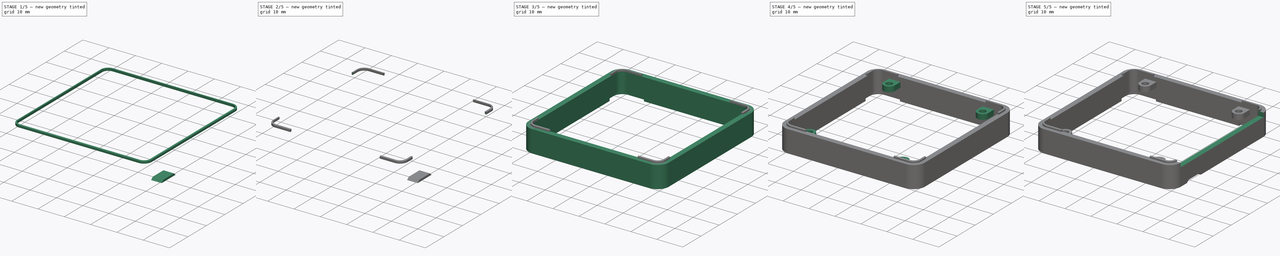
[diagram: build sequence overview — one tinted view per stage of 5, left to right]
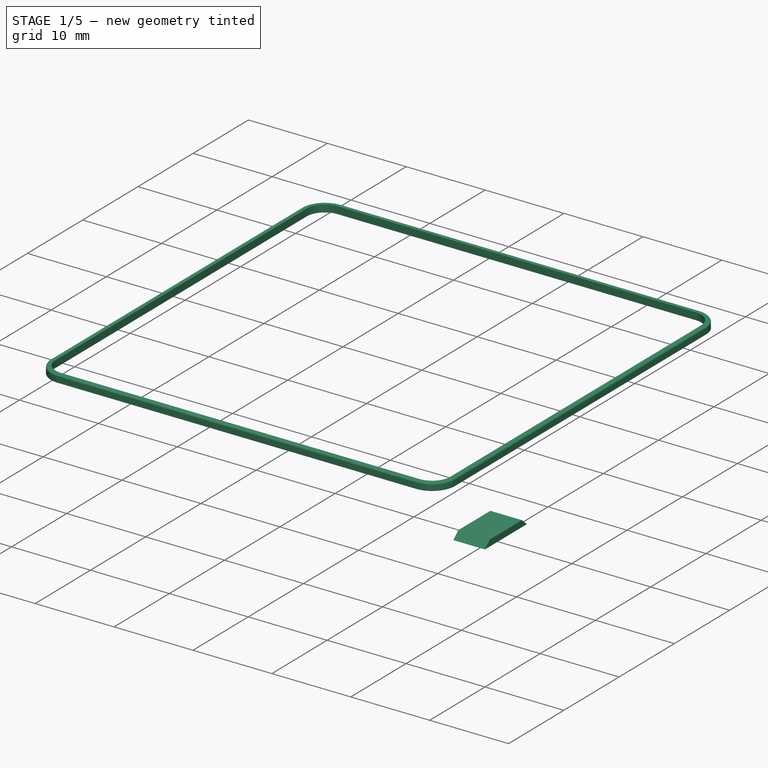
[diagram: stage 1 of 5 — iso view after this stage's code; geometry added in this stage tinted green]
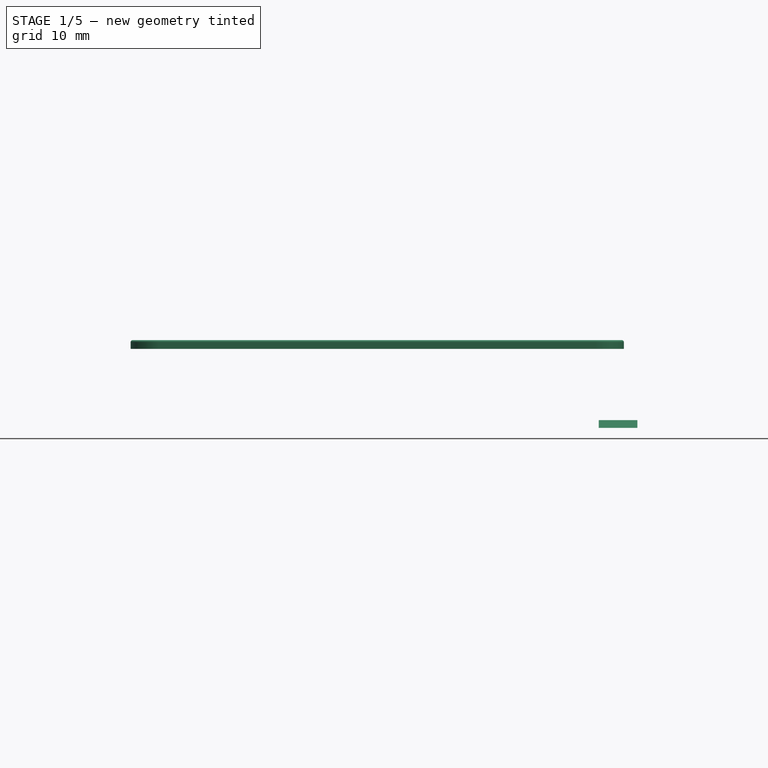
[diagram: stage 1 of 5 — front view after this stage's code; geometry added in this stage tinted green]
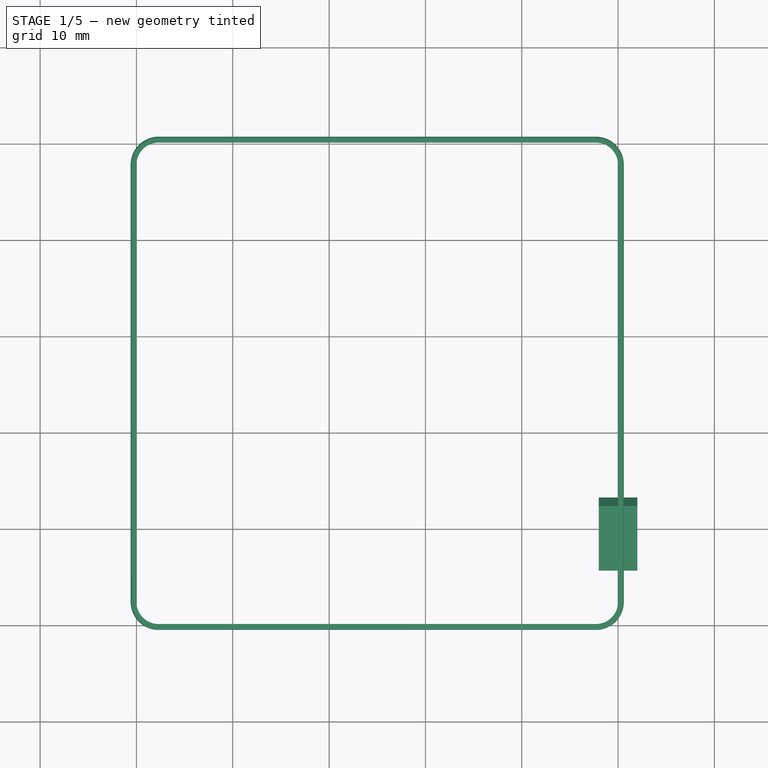
[diagram: stage 1 of 5 — top view after this stage's code; geometry added in this stage tinted green]
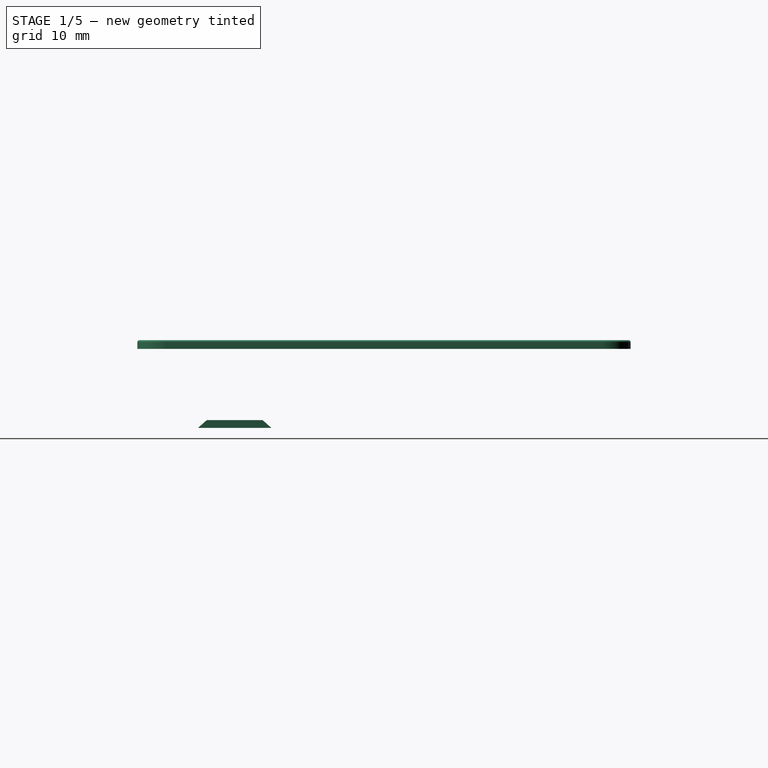
[diagram: stage 1 of 5 — right view after this stage's code; geometry added in this stage tinted green]
FCSTD DOCUMENT  (FreeCAD 0.17R13541 (Git))
Label: M5StackSideBBCase
License: All rights reserved
LicenseURL: http://en.wikipedia.org/wiki/All_rights_reserved
objects: Sketcher::SketchObject×7, Part::Extrusion×7, Part::Cut×4, Part::Fuse×2, PartDesign::Body×1, Part::Fillet×1, Part::Chamfer×1
note: 23 computed .brp shape members not serialized (recipe doc carries the construction recipe); baked Part::Feature solids carry a one-line shape summary decoded from their .brp

FEATURE [Sketcher::SketchObject] Sketch004
  MapMode = 5
  Support = -> [XY_Plane]
  sketch-geometry (29):
    g0: LineSegment StartX=2.3 StartY=50 StartZ=0 EndX=47.7 EndY=50 EndZ=0
    g1: LineSegment StartX=50 StartY=47.7 StartZ=0 EndX=50 EndY=2.3 EndZ=0
    g2: LineSegment StartX=47.7 StartY=0 StartZ=0 EndX=2.3 EndY=0 EndZ=0
    g3: LineSegment StartX=0 StartY=2.3 StartZ=0 EndX=0 EndY=47.7 EndZ=0
    g4: ArcOfCircle CenterX=2.3 CenterY=47.7 CenterZ=0 NormalX=0 NormalY=0 NormalZ=1 AngleXU=0 Radius=2.3 StartAngle=1.5708 EndAngle=3.14159
    g5: ArcOfCircle CenterX=2.3 CenterY=2.3 CenterZ=0 NormalX=0 NormalY=0 NormalZ=1 AngleXU=0 Radius=2.3 StartAngle=3.14159 EndAngle=4.71239
    g6: ArcOfCircle CenterX=47.7 CenterY=2.3 CenterZ=0 NormalX=0 NormalY=0 NormalZ=1 AngleXU=0 Radius=2.3 StartAngle=4.71239 EndAngle=6.28319
    g7: ArcOfCircle CenterX=47.7 CenterY=47.7 CenterZ=0 NormalX=0 NormalY=0 NormalZ=1 AngleXU=0 Radius=2.3 StartAngle=0 EndAngle=1.5708
    g8: LineSegment [constr] StartX=0 StartY=50 StartZ=0 EndX=50 EndY=50 EndZ=0
    g9: LineSegment [constr] StartX=50 StartY=50 StartZ=0 EndX=50 EndY=0 EndZ=0
    g10: LineSegment [constr] StartX=50 StartY=0 StartZ=0 EndX=0 EndY=0 EndZ=0
    g11: LineSegment [constr] StartX=0 StartY=0 StartZ=0 EndX=0 EndY=50 EndZ=0
    g12: LineSegment StartX=2.3 StartY=50.6 StartZ=0 EndX=47.7 EndY=50.6 EndZ=0
    g13: LineSegment StartX=50.6 StartY=47.7 StartZ=0 EndX=50.6 EndY=2.3 EndZ=0
    g14: LineSegment StartX=47.7 StartY=-0.6 StartZ=0 EndX=2.3 EndY=-0.6 EndZ=0
    g15: LineSegment StartX=-0.6 StartY=2.3 StartZ=0 EndX=-0.6 EndY=47.7 EndZ=0
    g16: ArcOfCircle CenterX=2.3 CenterY=47.7 CenterZ=0 NormalX=0 NormalY=0 NormalZ=1 AngleXU=0 Radius=2.9 StartAngle=1.5708 EndAngle=3.14159
    g17: ArcOfCircle CenterX=47.7 CenterY=47.7 CenterZ=0 NormalX=0 NormalY=0 NormalZ=1 AngleXU=0 Radius=2.9 StartAngle=0 EndAngle=1.5708
    g18: ArcOfCircle CenterX=47.7 CenterY=2.3 CenterZ=0 NormalX=0 NormalY=0 NormalZ=1 AngleXU=0 Radius=2.9 StartAngle=4.71239 EndAngle=6.28319
    g19: ArcOfCircle CenterX=2.3 CenterY=2.3 CenterZ=0 NormalX=0 NormalY=0 NormalZ=1 AngleXU=0 Radius=2.9 StartAngle=3.14159 EndAngle=4.71239
    g20: LineSegment [constr] StartX=50 StartY=8.24644 StartZ=0 EndX=50.6 EndY=8.24644 EndZ=0
    g21: LineSegment [constr] StartX=46.7108 StartY=0 StartZ=0 EndX=46.7108 EndY=-0.6 EndZ=0
    g22: LineSegment [constr] StartX=6.99016 StartY=50 StartZ=0 EndX=6.99016 EndY=50.6 EndZ=0
    g23: LineSegment [constr] StartX=-0.6 StartY=35.1511 StartZ=0 EndX=0 EndY=35.1511 EndZ=0
    g24: LineSegment [constr] StartX=2.3 StartY=47.7 StartZ=0 EndX=0 EndY=47.7 EndZ=0
    g25: LineSegment [constr] StartX=47.242 StartY=0 StartZ=0 EndX=47.242 EndY=-0.6 EndZ=0
    g26: LineSegment [constr] StartX=50 StartY=2.5659 StartZ=0 EndX=50.6 EndY=2.5659 EndZ=0
    g27: LineSegment [constr] StartX=2.94426 StartY=50.6 StartZ=0 EndX=2.94426 EndY=50 EndZ=0
    g28: LineSegment [constr] StartX=-0.6 StartY=47.2211 StartZ=0 EndX=0 EndY=47.2211 EndZ=0
  constraints (78):
    c: Horizontal(g0)
    c: Horizontal(g2)
    c: Vertical(g1)
    c: Vertical(g3)
    c: Tangent(g0,g4) = 1.5708
    c: Tangent(g3,g4) = 1.5708
    c: Tangent(g2,g5) = 1.5708
    c: Tangent(g3,g5) = 1.5708
    c: Tangent(g1,g6) = 1.5708
    c: Tangent(g2,g6) = 1.5708
    c: Tangent(g0,g7) = 1.5708
    c: Tangent(g1,g7) = 1.5708
    c: Equal(g4,g5)
    c: Equal(g4,g6)
    c: Equal(g4,g7)
    c: Coincident(g8,g9)
    c: Coincident(g9,g10)
    c: Coincident(g10,g11)
    c: Coincident(g11,g8)
    c: Horizontal(g8)
    c: Horizontal(g10)
    c: Vertical(g9)
    c: Vertical(g11)
    c: Equal(g10,g11)
    c: Distance(g11) = 50
    c: Coincident(g-1,g10)
    c: Horizontal(g12)
    c: Horizontal(g14)
    c: Vertical(g13)
    c: Vertical(g15)
    c: Tangent(g12,g16) = 1.5708
    c: Tangent(g15,g16) = 1.5708
    c: Tangent(g12,g17) = 1.5708
    c: Tangent(g13,g17) = 1.5708
    c: Tangent(g13,g18) = 1.5708
    c: Tangent(g14,g18) = 1.5708
    c: Tangent(g14,g19) = 1.5708
    c: Tangent(g15,g19) = 1.5708
    c: PointOnObject(g20,g13)
    c: Horizontal(g20)
    c: PointOnObject(g21,g14)
    c: Vertical(g21)
    c: PointOnObject(g22,g12)
    c: Vertical(g22)
    c: PointOnObject(g23,g15)
    c: Horizontal(g23)
    c: Equal(g21,g20)
    c: Equal(g20,g22)
    c: Equal(g22,g23)
    c: Distance(g23) = 0.6
    c: PointOnObject(g23,g11)
    c: PointOnObject(g22,g8)
    c: PointOnObject(g20,g9)
    c: PointOnObject(g21,g10)
    c: Equal(g16,g17)
    c: Equal(g17,g19)
    c: Equal(g19,g18)
    c: Coincident(g4,g16)
    c: Coincident(g24,g4)
    c: PointOnObject(g24,g11)
    c: Horizontal(g24)
    c: Distance(g24) = 2.3
    c: PointOnObject(g25,g2)
    c: PointOnObject(g25,g14)
    c: Vertical(g25)
    c: PointOnObject(g26,g13)
    c: PointOnObject(g26,g1)
    c: Horizontal(g26)
    c: PointOnObject(g27,g12)
    c: PointOnObject(g27,g0)
    c: PointOnObject(g28,g15)
    c: PointOnObject(g28,g3)
    c: Horizontal(g28)
    c: Vertical(g27)
    c: Equal(g27,g28)
    c: Equal(g28,g25)
    c: Equal(g25,g26)
    c: Distance(g28) = 0.6
FEATURE [Part::Extrusion] Extrude003
  Base = -> Sketch004
  Dir = (0,0,1)
  DirMode = 2
  FaceMakerClass = Part::FaceMakerBullseye
  LengthFwd = 0.7
  LengthRev = 0.2
  Placement = pos=(0,0,1.6) rot=(0,0,1;0rad)
  Solid = true
  Symmetric = false
FEATURE [Part::Fillet] Fillet
  Base = -> Extrude003
  Edges = 8 edges r=0.2: [Edge4,Edge7,Edge10,Edge13,Edge16,Edge19,Edge22,Edge24]
FEATURE [Sketcher::SketchObject] Sketch006
  Placement = pos=(0,0,0) rot=(1,0,0;1.5708rad)
  sketch-geometry (5):
    g0: LineSegment StartX=-3.8 StartY=0 StartZ=0 EndX=-2.9 EndY=0.8 EndZ=0
    g1: LineSegment StartX=-2.9 StartY=0.8 StartZ=0 EndX=2.9 EndY=0.8 EndZ=0
    g2: LineSegment StartX=2.9 StartY=0.8 StartZ=0 EndX=3.8 EndY=0 EndZ=0
    g3: LineSegment StartX=3.8 StartY=0 StartZ=0 EndX=-3.8 EndY=0 EndZ=0
    g4: LineSegment [constr] StartX=0 StartY=0.8 StartZ=0 EndX=0 EndY=0 EndZ=0
  constraints (15):
    c: Coincident(g0,g1)
    c: Horizontal(g1)
    c: Coincident(g1,g2)
    c: Coincident(g2,g3)
    c: Horizontal(g3)
    c: Coincident(g3,g0)
    c: PointOnObject(g4,g1)
    c: PointOnObject(g4,g3)
    c: Vertical(g4)
    c: Symmetric(g0,g1,g4)
    c: Symmetric(g0,g2,g4)
    c: DistanceX(g0,g4) = 2.9
    c: DistanceX(g0,g4) = 3.8
    c: DistanceY(g4,g4) = 0.8
    c: Coincident(g4,g-1)
FEATURE [Part::Extrusion] Extrude006
  Base = -> Sketch006
  Dir = (0,-1,0)
  DirMode = 2
  FaceMakerClass = Part::FaceMakerBullseye
  LengthFwd = 2
  LengthRev = 2
  Placement = pos=(50,9.5,-6.8) rot=(0,0,1;1.5708rad)
  Solid = true
  Symmetric = false
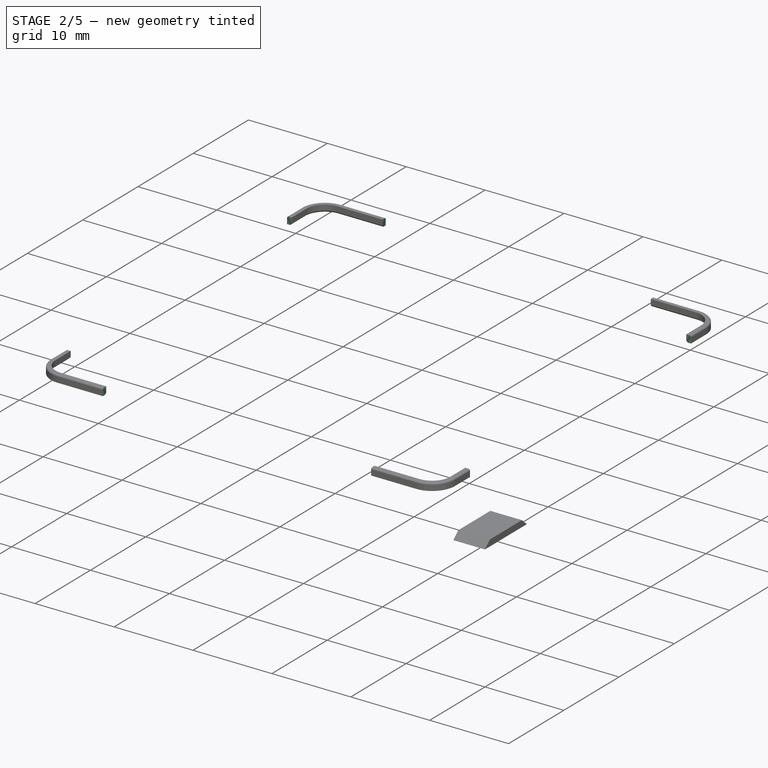
[diagram: stage 2 of 5 — iso view after this stage's code; geometry added in this stage tinted green]
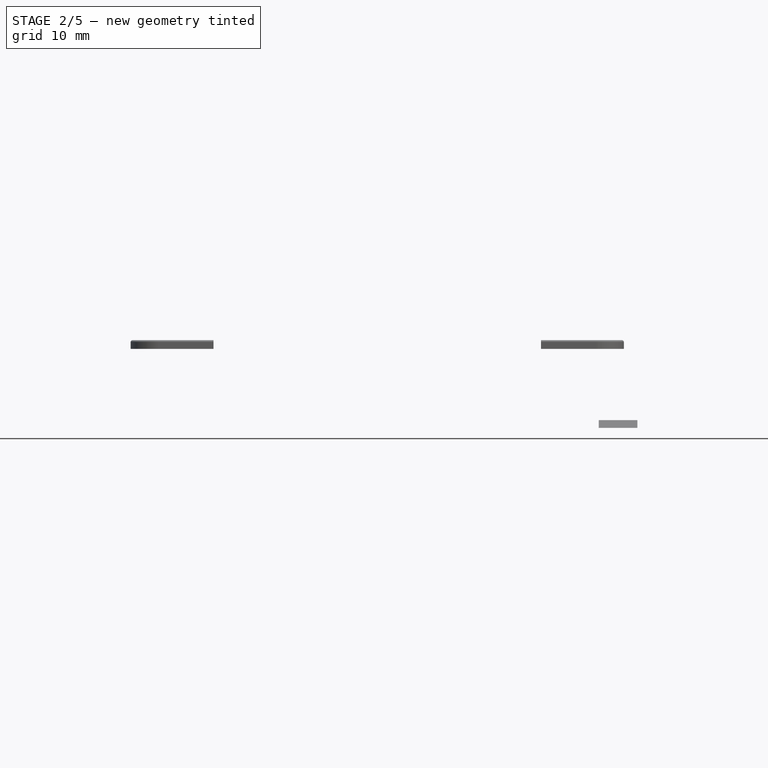
[diagram: stage 2 of 5 — front view after this stage's code; geometry added in this stage tinted green]
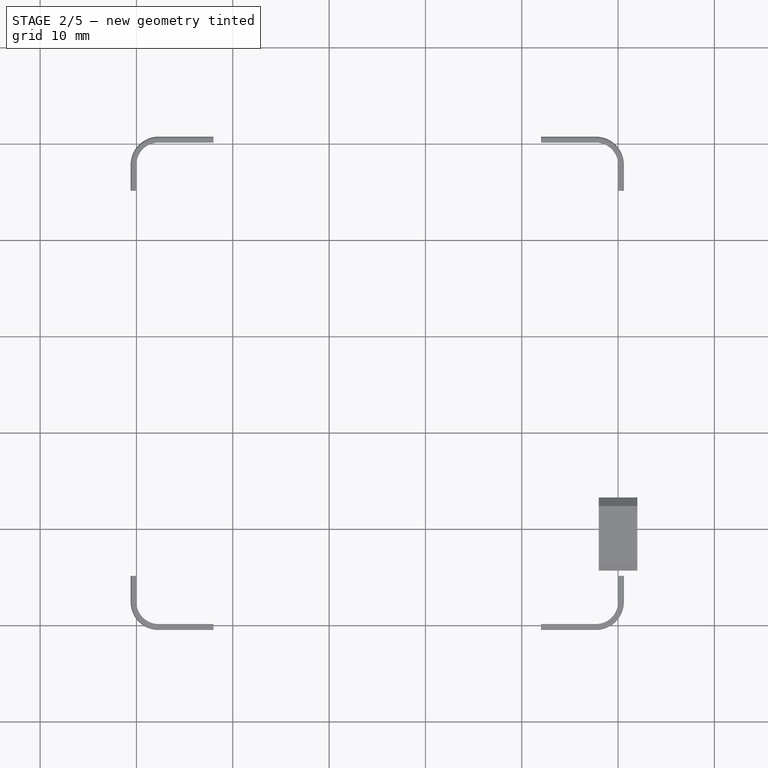
[diagram: stage 2 of 5 — top view after this stage's code; geometry added in this stage tinted green]
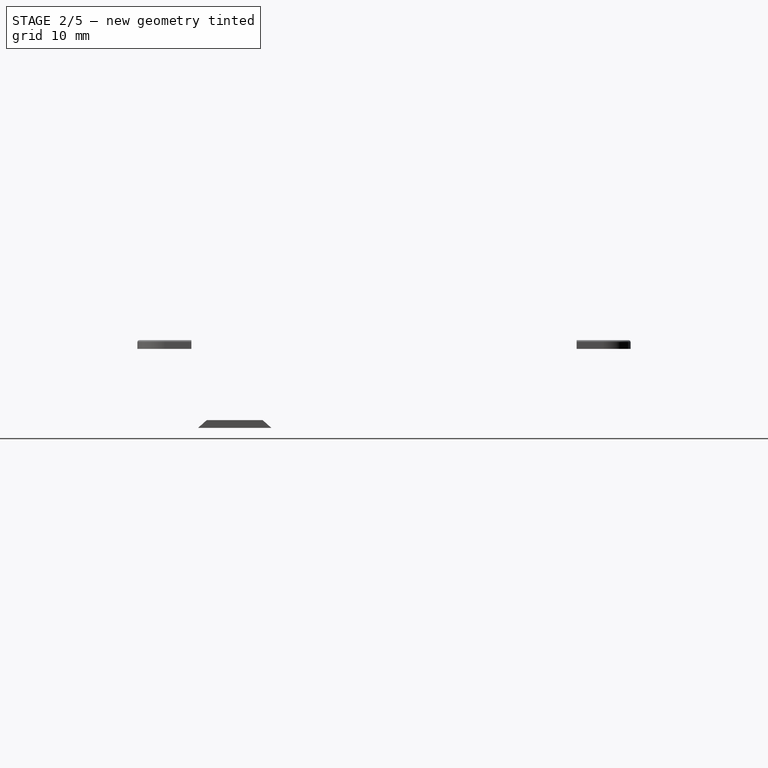
[diagram: stage 2 of 5 — right view after this stage's code; geometry added in this stage tinted green]
FEATURE [Sketcher::SketchObject] Sketch005
  MapMode = 5
  Support = -> [XY_Plane]
  sketch-geometry (28):
    g0: LineSegment [constr] StartX=0 StartY=50 StartZ=0 EndX=50 EndY=50 EndZ=0
    g1: LineSegment [constr] StartX=50 StartY=50 StartZ=0 EndX=50 EndY=0 EndZ=0
    g2: LineSegment [constr] StartX=50 StartY=0 StartZ=0 EndX=0 EndY=0 EndZ=0
    g3: LineSegment [constr] StartX=0 StartY=0 StartZ=0 EndX=0 EndY=50 EndZ=0
    g4: LineSegment StartX=8 StartY=53 StartZ=0 EndX=8 EndY=45 EndZ=0
    g5: LineSegment StartX=8 StartY=45 StartZ=0 EndX=-3 EndY=45 EndZ=0
    g6: LineSegment StartX=-3 StartY=45 StartZ=0 EndX=-3 EndY=5 EndZ=0
    g7: LineSegment StartX=-3 StartY=5 StartZ=0 EndX=8 EndY=5 EndZ=0
    g8: LineSegment StartX=8 StartY=5 StartZ=0 EndX=8 EndY=-3 EndZ=0
    g9: LineSegment StartX=8 StartY=-3 StartZ=0 EndX=42 EndY=-3 EndZ=0
    g10: LineSegment StartX=42 StartY=-3 StartZ=0 EndX=42 EndY=5 EndZ=0
    g11: LineSegment StartX=42 StartY=5 StartZ=0 EndX=53 EndY=5 EndZ=0
    g12: LineSegment StartX=53 StartY=5 StartZ=0 EndX=53 EndY=45 EndZ=0
    g13: LineSegment StartX=53 StartY=45 StartZ=0 EndX=42 EndY=45 EndZ=0
    g14: LineSegment StartX=42 StartY=45 StartZ=0 EndX=42 EndY=53 EndZ=0
    g15: LineSegment StartX=42 StartY=53 StartZ=0 EndX=8 EndY=53 EndZ=0
    g16: LineSegment [constr] StartX=8 StartY=45 StartZ=0 EndX=42 EndY=45 EndZ=0
    g17: LineSegment [constr] StartX=8 StartY=5 StartZ=0 EndX=42 EndY=5 EndZ=0
    g18: LineSegment [constr] StartX=8 StartY=45 StartZ=0 EndX=8 EndY=5 EndZ=0
    g19: LineSegment [constr] StartX=42 StartY=45 StartZ=0 EndX=42 EndY=5 EndZ=0
    g20: LineSegment [constr] StartX=42.2608 StartY=50 StartZ=0 EndX=42.2608 EndY=45 EndZ=0
    g21: LineSegment [constr] StartX=7.72571 StartY=5 StartZ=0 EndX=7.72571 EndY=0 EndZ=0
    g22: LineSegment [constr] StartX=42 StartY=11.5359 StartZ=0 EndX=50 EndY=11.5359 EndZ=0
    g23: LineSegment [constr] StartX=0 StartY=13.7902 StartZ=0 EndX=8 EndY=13.7902 EndZ=0
    g24: LineSegment [constr] StartX=42.2608 StartY=50 StartZ=0 EndX=42.2608 EndY=53 EndZ=0
    g25: LineSegment [constr] StartX=50 StartY=11.5359 StartZ=0 EndX=53 EndY=11.5359 EndZ=0
    g26: LineSegment [constr] StartX=7.72571 StartY=0 StartZ=0 EndX=7.72571 EndY=-3 EndZ=0
    g27: LineSegment [constr] StartX=0 StartY=13.7902 StartZ=0 EndX=-3 EndY=13.7902 EndZ=0
  constraints (79):
    c: Coincident(g0,g1)
    c: Coincident(g1,g2)
    c: Coincident(g2,g3)
    c: Coincident(g3,g0)
    c: Horizontal(g0)
    c: Horizontal(g2)
    c: Vertical(g1)
    c: Vertical(g3)
    c: Coincident(g2,g-1)
    c: Distance(g2) = 50
    c: Vertical(g4)
    c: Coincident(g4,g5)
    c: Horizontal(g5)
    c: Coincident(g5,g6)
    c: Vertical(g6)
    c: Coincident(g6,g7)
    c: Horizontal(g7)
    c: Coincident(g7,g8)
    c: Vertical(g8)
    c: Coincident(g8,g9)
    c: Horizontal(g9)
    c: Coincident(g9,g10)
    c: Vertical(g10)
    c: Coincident(g10,g11)
    c: Horizontal(g11)
    c: Coincident(g11,g12)
    c: Vertical(g12)
    c: Coincident(g12,g13)
    c: Horizontal(g13)
    c: Coincident(g13,g14)
    c: Vertical(g14)
    c: Coincident(g14,g15)
    c: Coincident(g15,g4)
    c: Horizontal(g15)
    c: Coincident(g16,g4)
    c: Coincident(g16,g13)
    c: Horizontal(g16)
    c: Coincident(g17,g7)
    c: Coincident(g17,g10)
    c: Horizontal(g17)
    c: Coincident(g18,g4)
    c: Coincident(g19,g13)
    c: Coincident(g19,g10)
    c: Vertical(g19)
    c: Vertical(g18)
    c: Coincident(g7,g18)
    c: PointOnObject(g20,g0)
    c: PointOnObject(g20,g16)
    c: Vertical(g20)
    c: PointOnObject(g21,g17)
    c: PointOnObject(g21,g2)
    c: PointOnObject(g22,g19)
    c: PointOnObject(g22,g1)
    c: Horizontal(g22)
    c: PointOnObject(g23,g3)
    c: PointOnObject(g23,g18)
    c: Horizontal(g23)
    c: Vertical(g21)
    c: Coincident(g24,g20)
    c: PointOnObject(g24,g15)
    c: Vertical(g24)
    c: Coincident(g25,g22)
    c: PointOnObject(g25,g12)
    c: Horizontal(g25)
    c: Coincident(g26,g21)
    c: PointOnObject(g26,g9)
    c: Vertical(g26)
    c: Coincident(g27,g23)
    c: PointOnObject(g27,g6)
    c: Horizontal(g27)
    c: Equal(g27,g26)
    c: Equal(g26,g25)
    c: Equal(g25,g24)
    c: Distance(g27) = 3
    c: Equal(g20,g21)
    c: Equal(g22,g23)
    c: Distance(g23) = 8
    c: Distance(g20) = 5
    c: Equal(g2,g3)
FEATURE [PartDesign::Body] Body
  Group = -> [Sketch,Sketch001,Sketch002,Sketch005]
  Origin = -> Origin
FEATURE [Part::Extrusion] Extrude005
  Base = -> Sketch005
  Dir = (0,0,1)
  DirMode = 2
  FaceMakerClass = Part::FaceMakerBullseye
  LengthFwd = 10
  LengthRev = 0
  Solid = true
  Symmetric = false
FEATURE [Part::Chamfer] Chamfer
  Base = -> Fillet
  Edges = 8 edges r=0.2: [Edge17,Edge18,Edge19,Edge20,Edge21,Edge22,Edge23,Edge24]
FEATURE [Part::Cut] Cut003
  Base = -> Chamfer
  Tool = -> Extrude005
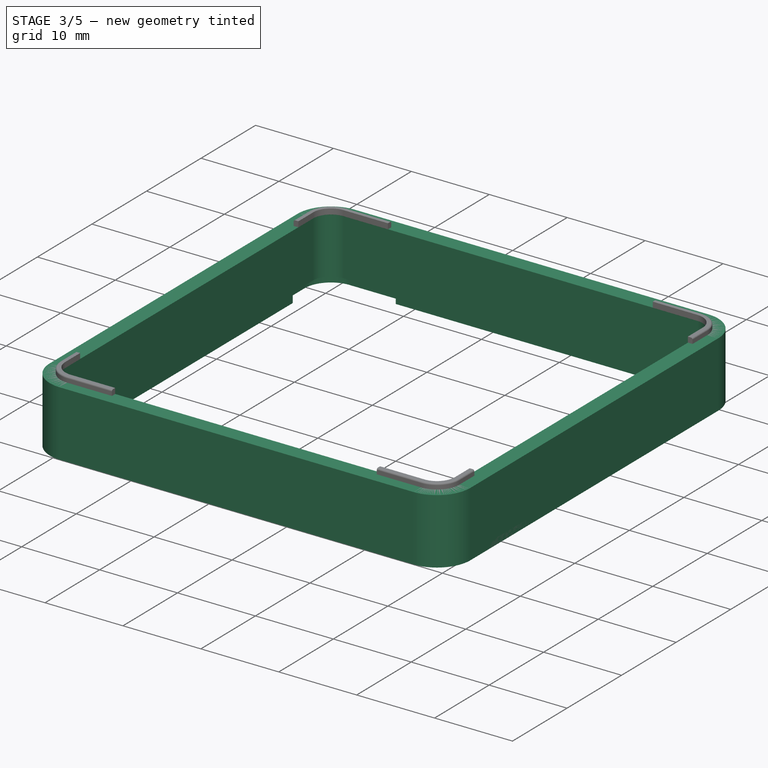
[diagram: stage 3 of 5 — iso view after this stage's code; geometry added in this stage tinted green]
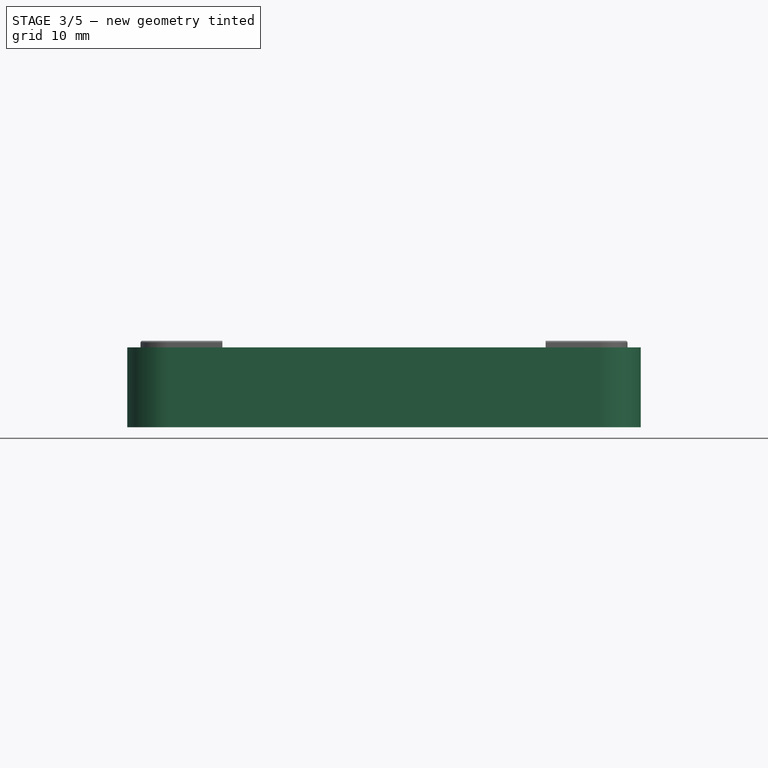
[diagram: stage 3 of 5 — front view after this stage's code; geometry added in this stage tinted green]
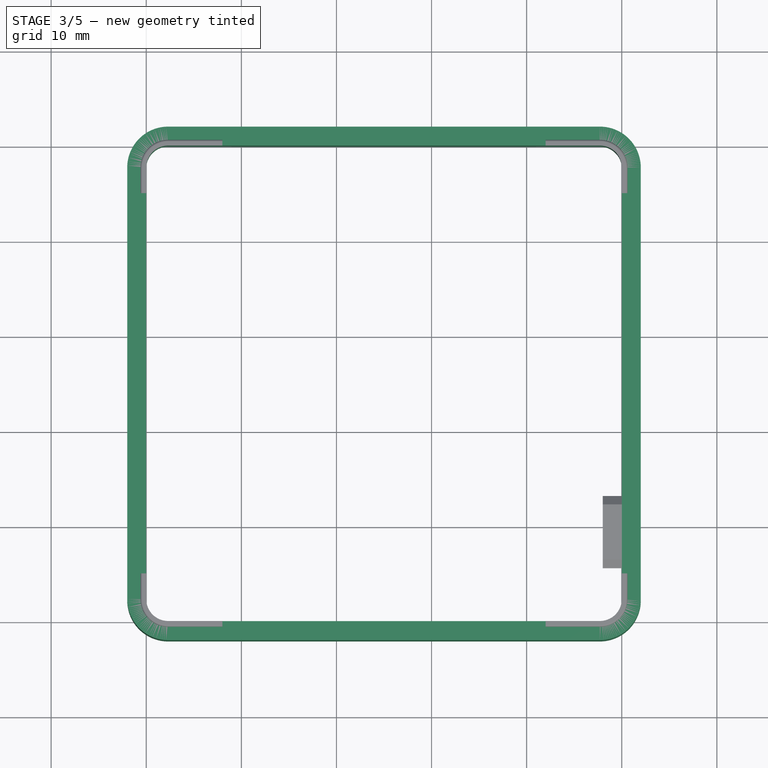
[diagram: stage 3 of 5 — top view after this stage's code; geometry added in this stage tinted green]
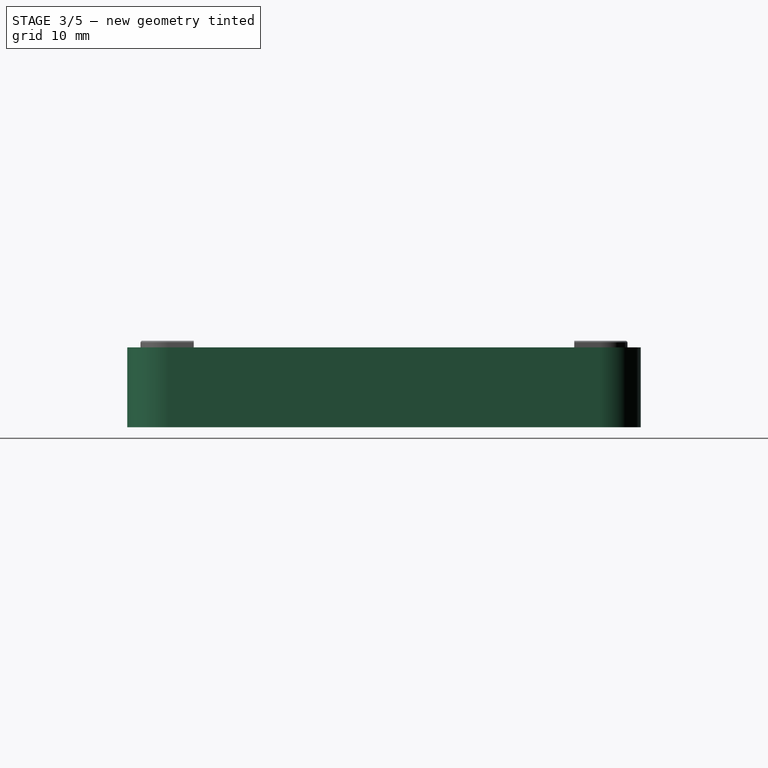
[diagram: stage 3 of 5 — right view after this stage's code; geometry added in this stage tinted green]
FEATURE [Sketcher::SketchObject] Sketch
  MapMode = 5
  Support = -> [XY_Plane]
  sketch-geometry (10):
    g0: LineSegment [constr] StartX=0 StartY=50 StartZ=0 EndX=50 EndY=50 EndZ=0
    g1: LineSegment [constr] StartX=50 StartY=50 StartZ=0 EndX=50 EndY=0 EndZ=0
    g2: LineSegment [constr] StartX=50 StartY=0 StartZ=0 EndX=0 EndY=0 EndZ=0
    g3: LineSegment [constr] StartX=0 StartY=0 StartZ=0 EndX=0 EndY=50 EndZ=0
    g4: LineSegment StartX=44.2285 StartY=47.8 StartZ=0 EndX=58.276 EndY=47.8 EndZ=0
    g5: LineSegment StartX=58.276 StartY=47.8 StartZ=0 EndX=58.276 EndY=2.2 EndZ=0
    g6: LineSegment StartX=58.276 StartY=2.2 StartZ=0 EndX=44.2285 EndY=2.2 EndZ=0
    g7: LineSegment StartX=44.2285 StartY=2.2 StartZ=0 EndX=44.2285 EndY=47.8 EndZ=0
    g8: LineSegment [constr] StartX=44.2285 StartY=47.8 StartZ=0 EndX=44.2285 EndY=50 EndZ=0
    g9: LineSegment [constr] StartX=44.2285 StartY=2.2 StartZ=0 EndX=44.2285 EndY=0 EndZ=0
  constraints (27):
    c: Coincident(g0,g1)
    c: Coincident(g1,g2)
    c: Coincident(g2,g3)
    c: Coincident(g3,g0)
    c: Horizontal(g0)
    c: Horizontal(g2)
    c: Vertical(g1)
    c: Vertical(g3)
    c: Equal(g3,g2)
    c: Distance(g3) = 50
    c: Coincident(g2,g-1)
    c: Coincident(g4,g5)
    c: Coincident(g5,g6)
    c: Coincident(g6,g7)
    c: Coincident(g7,g4)
    c: Horizontal(g4)
    c: Horizontal(g6)
    c: Vertical(g5)
    c: Vertical(g7)
    c: Coincident(g8,g4)
    c: PointOnObject(g8,g0)
    c: Vertical(g8)
    c: Coincident(g9,g6)
    c: PointOnObject(g9,g2)
    c: Vertical(g9)
    c: Equal(g8,g9)
    c: Distance(g8) = 2.2
FEATURE [Sketcher::SketchObject] Sketch001
  MapMode = 5
  Support = -> [XY_Plane]
  sketch-geometry (29):
    g0: LineSegment StartX=2.3 StartY=50.01 StartZ=0 EndX=47.7 EndY=50.01 EndZ=0
    g1: LineSegment StartX=50.01 StartY=47.7 StartZ=0 EndX=50.01 EndY=2.3 EndZ=0
    g2: LineSegment StartX=47.7 StartY=-0.01 StartZ=0 EndX=2.3 EndY=-0.01 EndZ=0
    g3: LineSegment StartX=-0.01 StartY=2.3 StartZ=0 EndX=-0.01 EndY=47.7 EndZ=0
    g4: ArcOfCircle CenterX=2.3 CenterY=47.7 CenterZ=0 NormalX=0 NormalY=0 NormalZ=1 AngleXU=0 Radius=2.31 StartAngle=1.5708 EndAngle=3.14159
    g5: ArcOfCircle CenterX=2.3 CenterY=2.3 CenterZ=0 NormalX=0 NormalY=0 NormalZ=1 AngleXU=0 Radius=2.31 StartAngle=3.14159 EndAngle=4.71239
    g6: ArcOfCircle CenterX=47.7 CenterY=2.3 CenterZ=0 NormalX=0 NormalY=0 NormalZ=1 AngleXU=0 Radius=2.31 StartAngle=4.71239 EndAngle=6.28319
    g7: ArcOfCircle CenterX=47.7 CenterY=47.7 CenterZ=0 NormalX=0 NormalY=0 NormalZ=1 AngleXU=0 Radius=2.31 StartAngle=0 EndAngle=1.5708
    g8: LineSegment [constr] StartX=0 StartY=50 StartZ=0 EndX=50 EndY=50 EndZ=0
    g9: LineSegment [constr] StartX=50 StartY=50 StartZ=0 EndX=50 EndY=0 EndZ=0
    g10: LineSegment [constr] StartX=50 StartY=0 StartZ=0 EndX=0 EndY=0 EndZ=0
    g11: LineSegment [constr] StartX=0 StartY=0 StartZ=0 EndX=0 EndY=50 EndZ=0
    g12: LineSegment [constr] StartX=50 StartY=2.3 StartZ=0 EndX=50.01 EndY=2.3 EndZ=0
    g13: LineSegment [constr] StartX=47.7 StartY=0 StartZ=0 EndX=47.7 EndY=-0.01 EndZ=0
    g14: LineSegment [constr] StartX=0 StartY=47.7 StartZ=0 EndX=-0.01 EndY=47.7 EndZ=0
    g15: LineSegment [constr] StartX=2.3 StartY=50.01 StartZ=0 EndX=2.3 EndY=50 EndZ=0
    g16: LineSegment StartX=2.3 StartY=52 StartZ=0 EndX=47.7 EndY=52 EndZ=0
    g17: LineSegment StartX=52 StartY=47.7 StartZ=0 EndX=52 EndY=2.3 EndZ=0
    g18: LineSegment StartX=47.7 StartY=-2 StartZ=0 EndX=2.3 EndY=-2 EndZ=0
    g19: LineSegment StartX=-2 StartY=2.3 StartZ=0 EndX=-2 EndY=47.7 EndZ=0
    g20: ArcOfCircle CenterX=2.3 CenterY=47.7 CenterZ=0 NormalX=0 NormalY=0 NormalZ=1 AngleXU=0 Radius=4.3 StartAngle=1.5708 EndAngle=3.14159
    g21: ArcOfCircle CenterX=47.7 CenterY=47.7 CenterZ=0 NormalX=0 NormalY=0 NormalZ=1 AngleXU=0 Radius=4.3 StartAngle=0 EndAngle=1.5708
    g22: ArcOfCircle CenterX=47.7 CenterY=2.3 CenterZ=0 NormalX=0 NormalY=0 NormalZ=1 AngleXU=0 Radius=4.3 StartAngle=4.71239 EndAngle=6.28319
    g23: ArcOfCircle CenterX=2.3 CenterY=2.3 CenterZ=0 NormalX=0 NormalY=0 NormalZ=1 AngleXU=0 Radius=4.3 StartAngle=3.14159 EndAngle=4.71239
    g24: LineSegment [constr] StartX=50 StartY=8.24644 StartZ=0 EndX=52 EndY=8.24644 EndZ=0
    g25: LineSegment [constr] StartX=46.7108 StartY=0 StartZ=0 EndX=46.7108 EndY=-2 EndZ=0
    g26: LineSegment [constr] StartX=6.99016 StartY=50 StartZ=0 EndX=6.99016 EndY=52 EndZ=0
    g27: LineSegment [constr] StartX=-2 StartY=35.1511 StartZ=0 EndX=0 EndY=35.1511 EndZ=0
    g28: LineSegment [constr] StartX=2.3 StartY=47.7 StartZ=0 EndX=0 EndY=47.7 EndZ=0
  constraints (82):
    c: Horizontal(g0)
    c: Horizontal(g2)
    c: Vertical(g1)
    c: Vertical(g3)
    c: Tangent(g0,g4) = 1.5708
    c: Tangent(g3,g4) = 1.5708
    c: Tangent(g2,g5) = 1.5708
    c: Tangent(g3,g5) = 1.5708
    c: Tangent(g1,g6) = 1.5708
    c: Tangent(g2,g6) = 1.5708
    c: Tangent(g0,g7) = 1.5708
    c: Tangent(g1,g7) = 1.5708
    c: Equal(g4,g5)
    c: Equal(g4,g6)
    c: Equal(g4,g7)
    c: Coincident(g8,g9)
    c: Coincident(g9,g10)
    c: Coincident(g10,g11)
    c: Coincident(g11,g8)
    c: Horizontal(g8)
    c: Horizontal(g10)
    c: Vertical(g9)
    c: Vertical(g11)
    c: Equal(g10,g11)
    c: Distance(g11) = 50
    c: Coincident(g-1,g10)
    c: PointOnObject(g12,g9)
    c: PointOnObject(g12,g1)
    c: Horizontal(g12)
    c: PointOnObject(g13,g10)
    c: PointOnObject(g13,g2)
    c: PointOnObject(g14,g11)
    c: PointOnObject(g14,g3)
    c: PointOnObject(g15,g0)
    c: PointOnObject(g15,g8)
    c: Vertical(g15)
    c: Horizontal(g14)
    c: Equal(g14,g13)
    c: Equal(g13,g12)
    c: Equal(g12,g15)
    c: Distance(g14) = 0.01
    c: Horizontal(g16)
    c: Horizontal(g18)
    c: Vertical(g17)
    c: Vertical(g19)
    c: Tangent(g16,g20) = 1.5708
    c: Tangent(g19,g20) = 1.5708
    c: Tangent(g16,g21) = 1.5708
    c: Tangent(g17,g21) = 1.5708
    c: Tangent(g17,g22) = 1.5708
    c: Tangent(g18,g22) = 1.5708
    c: Tangent(g18,g23) = 1.5708
    c: Tangent(g19,g23) = 1.5708
    c: Coincident(g2,g13)
    c: Coincident(g0,g15)
    c: Coincident(g14,g3)
    c: Coincident(g12,g1)
    c: PointOnObject(g24,g17)
    c: Horizontal(g24)
    c: PointOnObject(g25,g18)
    c: Vertical(g25)
    c: PointOnObject(g26,g16)
    c: Vertical(g26)
    c: PointOnObject(g27,g19)
    c: Horizontal(g27)
    c: Equal(g25,g24)
    c: Equal(g24,g26)
    c: Equal(g26,g27)
    c: Distance(g27) = 2
    c: PointOnObject(g27,g11)
    c: PointOnObject(g26,g8)
    c: PointOnObject(g24,g9)
    c: PointOnObject(g25,g10)
    c: Equal(g20,g21)
    c: Equal(g21,g23)
    c: Equal(g23,g22)
    c: Coincident(g20,g4)
    c: Coincident(g28,g4)
    c: PointOnObject(g28,g11)
    c: Horizontal(g28)
    c: Distance(g28) = 2.3
    c: Vertical(g13)
FEATURE [Part::Extrusion] Extrude
  Base = -> Sketch001
  Dir = (0,0,1)
  DirMode = 2
  FaceMakerClass = Part::FaceMakerBullseye
  LengthFwd = 1.6
  LengthRev = 6.8
  Solid = true
  Symmetric = false
FEATURE [Sketcher::SketchObject] Sketch003
  MapMode = 5
  Support = -> [XY_Plane]
  sketch-geometry (31):
    g0: LineSegment StartX=2.3 StartY=51.1 StartZ=0 EndX=9 EndY=51.1 EndZ=0
    g1: LineSegment StartX=51.1 StartY=47.6997 StartZ=0 EndX=51.1 EndY=44 EndZ=0
    g2: LineSegment StartX=47.6997 StartY=-1.1 StartZ=0 EndX=41 EndY=-1.1 EndZ=0
    g3: LineSegment StartX=-1.1 StartY=2.3003 StartZ=0 EndX=-1.1 EndY=6 EndZ=0
    g4: ArcOfCircle CenterX=2.3 CenterY=47.6997 CenterZ=0 NormalX=0 NormalY=0 NormalZ=1 AngleXU=0 Radius=3.4003 StartAngle=1.5708 EndAngle=3.1549
    g5: ArcOfCircle CenterX=2.3003 CenterY=2.3003 CenterZ=0 NormalX=0 NormalY=0 NormalZ=1 AngleXU=0 Radius=3.4003 StartAngle=3.14159 EndAngle=4.7107
    g6: ArcOfCircle CenterX=47.6997 CenterY=2.3003 CenterZ=0 NormalX=0 NormalY=0 NormalZ=1 AngleXU=0 Radius=3.4003 StartAngle=4.71239 EndAngle=6.2823
    g7: ArcOfCircle CenterX=47.6997 CenterY=47.6997 CenterZ=0 NormalX=0 NormalY=0 NormalZ=1 AngleXU=0 Radius=3.4003 StartAngle=0 EndAngle=1.57112
    g8: LineSegment [constr] StartX=0 StartY=50 StartZ=0 EndX=50 EndY=50 EndZ=0
    g9: LineSegment [constr] StartX=50 StartY=50 StartZ=0 EndX=50 EndY=0 EndZ=0
    g10: LineSegment [constr] StartX=50 StartY=0 StartZ=0 EndX=0 EndY=0 EndZ=0
    g11: LineSegment [constr] StartX=0 StartY=0 StartZ=0 EndX=0 EndY=50 EndZ=0
    g12: LineSegment [constr] StartX=50 StartY=2.2973 StartZ=0 EndX=51.1 EndY=2.2973 EndZ=0
    g13: LineSegment [constr] StartX=47.6997 StartY=0 StartZ=0 EndX=47.6997 EndY=-1.1 EndZ=0
    g14: LineSegment [constr] StartX=0 StartY=47.6545 StartZ=0 EndX=-1.1 EndY=47.6545 EndZ=0
    g15: LineSegment [constr] StartX=2.3 StartY=51.1 StartZ=0 EndX=2.3 EndY=50 EndZ=0
    g16: LineSegment [constr] StartX=2.3 StartY=47.6997 StartZ=0 EndX=0 EndY=47.6997 EndZ=0
    g17: LineSegment StartX=-1.1 StartY=44 StartZ=0 EndX=9 EndY=44 EndZ=0
    g18: LineSegment StartX=9 StartY=44 StartZ=0 EndX=9 EndY=51.1 EndZ=0
    g19: LineSegment StartX=41 StartY=51.1 StartZ=0 EndX=41 EndY=44 EndZ=0
    g20: LineSegment StartX=41 StartY=44 StartZ=0 EndX=51.1 EndY=44 EndZ=0
    g21: LineSegment StartX=-1.1 StartY=6 StartZ=0 EndX=9 EndY=6 EndZ=0
    g22: LineSegment StartX=9 StartY=6 StartZ=0 EndX=9 EndY=-1.1 EndZ=0
    g23: LineSegment StartX=41 StartY=-1.1 StartZ=0 EndX=41 EndY=6 EndZ=0
    g24: LineSegment StartX=41 StartY=6 StartZ=0 EndX=51.1 EndY=6 EndZ=0
    g25: LineSegment StartX=-1.1 StartY=44 StartZ=0 EndX=-1.1 EndY=47.6545 EndZ=0
    g26: LineSegment StartX=51.1 StartY=6 StartZ=0 EndX=51.1 EndY=2.2973 EndZ=0
    g27: LineSegment StartX=9 StartY=-1.1 StartZ=0 EndX=2.29456 EndY=-1.1 EndZ=0
    g28: LineSegment StartX=41 StartY=51.1 StartZ=0 EndX=47.6986 EndY=51.1 EndZ=0
    g29: LineSegment [constr] StartX=0 StartY=45.8167 StartZ=0 EndX=9 EndY=45.8167 EndZ=0
    g30: LineSegment [constr] StartX=6.63195 StartY=50 StartZ=0 EndX=6.63195 EndY=44 EndZ=0
  constraints (88):
    c: Horizontal(g0)
    c: Horizontal(g2)
    c: Vertical(g1)
    c: Vertical(g3)
    c: Tangent(g0,g4) = 1.5708
    c: Coincident(g25,g4) = 1.5708
    c: Coincident(g27,g5) = 1.5708
    c: Tangent(g3,g5) = 1.5708
    c: Coincident(g26,g6) = 1.5708
    c: Tangent(g2,g6) = 1.5708
    c: Coincident(g28,g7) = 1.5708
    c: Tangent(g1,g7) = 1.5708
    c: Equal(g4,g5)
    c: Equal(g4,g6)
    c: Equal(g4,g7)
    c: Coincident(g8,g9)
    c: Coincident(g9,g10)
    c: Coincident(g10,g11)
    c: Coincident(g11,g8)
    c: Horizontal(g8)
    c: Horizontal(g10)
    c: Vertical(g9)
    c: Vertical(g11)
    c: Equal(g10,g11)
    c: Distance(g11) = 50
    c: Coincident(g-1,g10)
    c: PointOnObject(g12,g9)
    c: PointOnObject(g12,g1)
    c: Horizontal(g12)
    c: PointOnObject(g13,g10)
    c: PointOnObject(g13,g2)
    c: PointOnObject(g14,g11)
    c: PointOnObject(g14,g3)
    c: PointOnObject(g15,g0)
    c: PointOnObject(g15,g8)
    c: Vertical(g15)
    c: Horizontal(g14)
    c: Equal(g14,g13)
    c: Equal(g13,g12)
    c: Equal(g12,g15)
    c: Distance(g14) = 1.1
    c: Coincident(g2,g13)
    c: Coincident(g0,g15)
    c: Coincident(g14,g25)
    c: Coincident(g12,g26)
    c: Coincident(g16,g4)
    c: PointOnObject(g16,g11)
    c: Horizontal(g16)
    c: Distance(g16) = 2.3
    c: Horizontal(g17)
    c: Coincident(g17,g18)
    c: Vertical(g18)
    c: Vertical(g19)
    c: Coincident(g19,g20)
    c: Horizontal(g20)
    c: Horizontal(g21)
    c: Coincident(g21,g22)
    c: Vertical(g22)
    c: Vertical(g23)
    c: Coincident(g23,g24)
    c: Horizontal(g24)
    c: Coincident(g3,g21)
    c: Coincident(g25,g17)
    c: Tangent(g3,g25)
    c: Coincident(g1,g20)
    c: Coincident(g26,g24)
    c: Tangent(g1,g26)
    c: Coincident(g2,g23)
    c: Coincident(g27,g22)
    c: Tangent(g2,g27)
    c: Coincident(g0,g18)
    c: Coincident(g28,g19)
    c: Tangent(g0,g28)
    c: Vertical(g13)
    c: Equal(g18,g22)
    c: Equal(g22,g23)
    c: Equal(g23,g19)
    c: Equal(g20,g24)
    c: Equal(g24,g21)
    c: Equal(g21,g17)
    c: PointOnObject(g29,g11)
    c: PointOnObject(g29,g18)
    c: Horizontal(g29)
    c: PointOnObject(g30,g8)
    c: PointOnObject(g30,g17)
    c: Vertical(g30)
    c: Distance(g29) = 9
    c: Distance(g30) = 6
FEATURE [Part::Extrusion] Extrude002
  Base = -> Sketch003
  Dir = (0,0,1)
  DirMode = 2
  FaceMakerClass = Part::FaceMakerBullseye
  LengthFwd = 0
  LengthRev = 2
  Placement = pos=(0,0,-5.6) rot=(0,0,1;0rad)
  Solid = true
  Symmetric = false
FEATURE [Part::Cut] Cut002
  Base = -> Extrude
  Tool = -> Extrude002
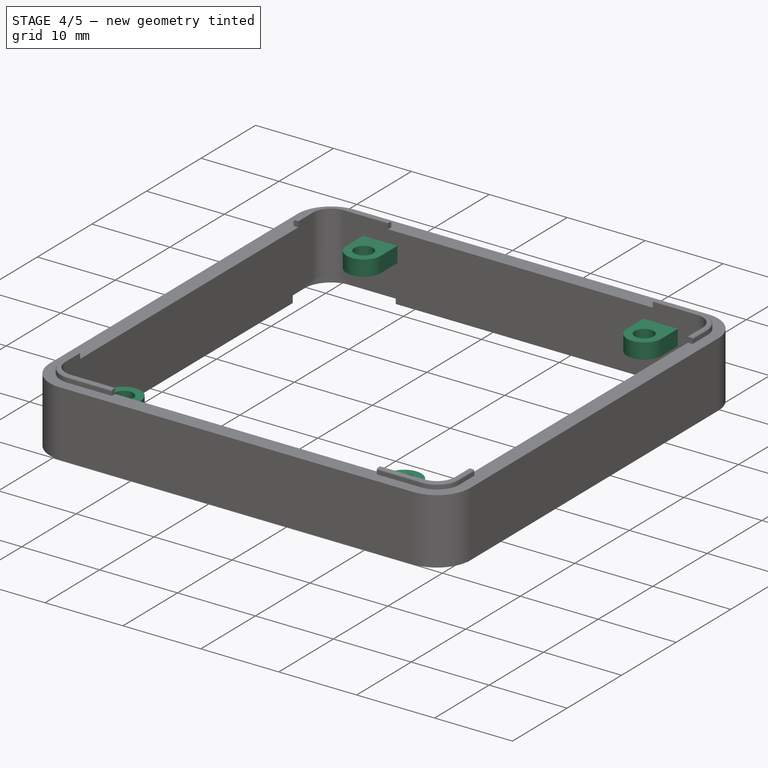
[diagram: stage 4 of 5 — iso view after this stage's code; geometry added in this stage tinted green]
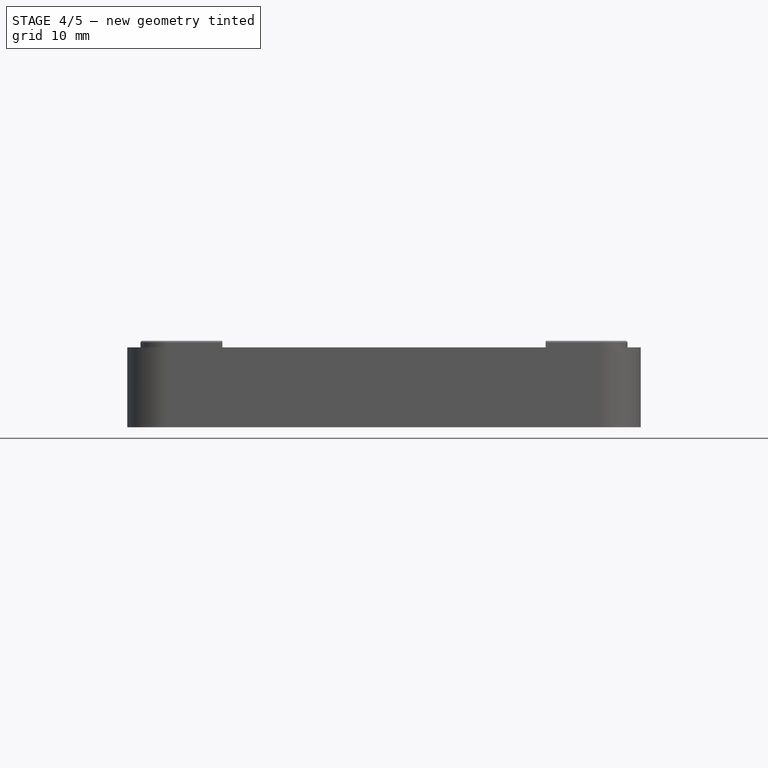
[diagram: stage 4 of 5 — front view after this stage's code; geometry added in this stage tinted green]
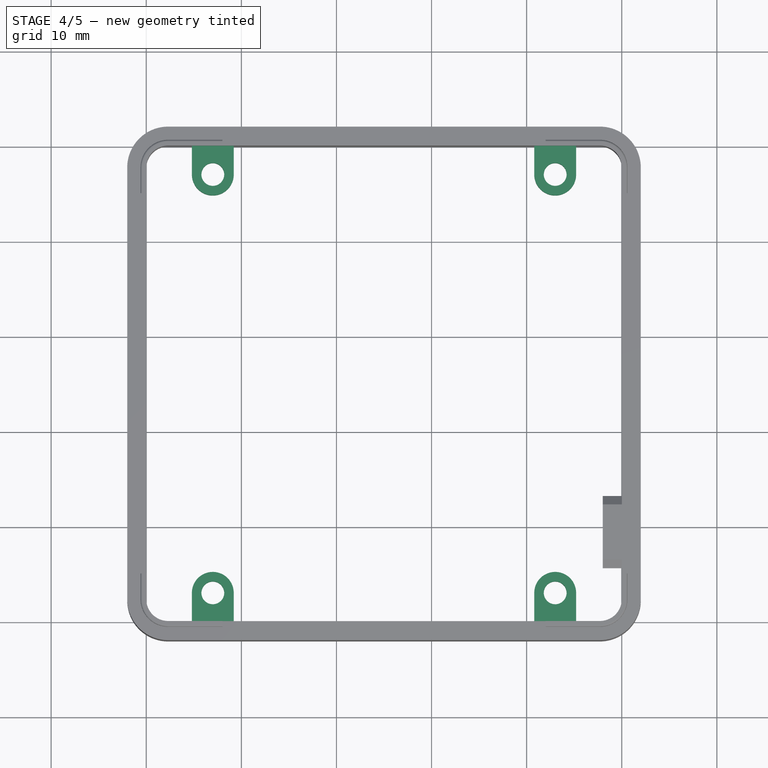
[diagram: stage 4 of 5 — top view after this stage's code; geometry added in this stage tinted green]
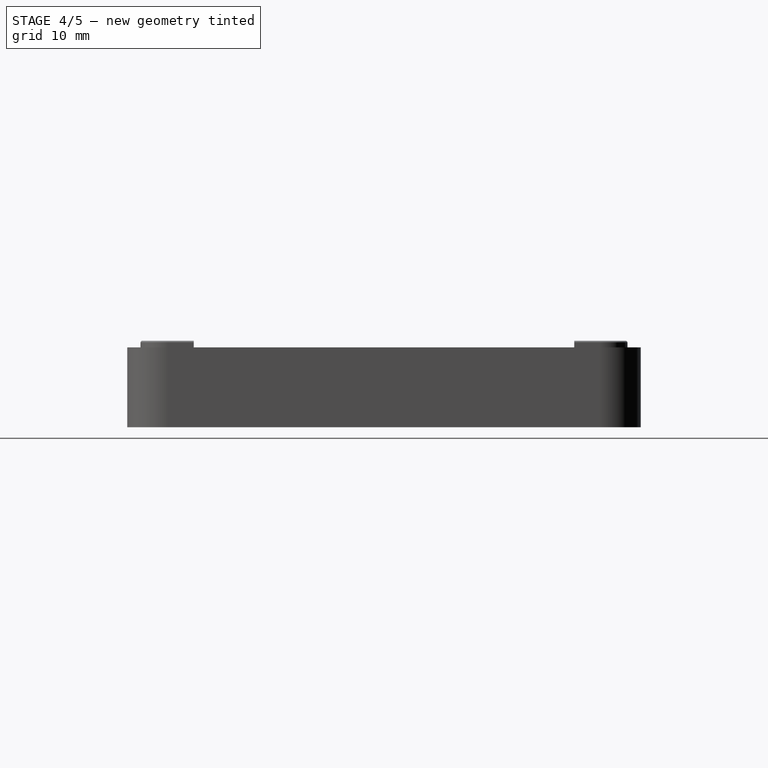
[diagram: stage 4 of 5 — right view after this stage's code; geometry added in this stage tinted green]
FEATURE [Sketcher::SketchObject] Sketch002
  MapMode = 5
  Support = -> [XY_Plane]
  sketch-geometry (40):
    g0: LineSegment [constr] StartX=0 StartY=50 StartZ=0 EndX=50 EndY=50 EndZ=0
    g1: LineSegment [constr] StartX=50 StartY=50 StartZ=0 EndX=50 EndY=0 EndZ=0
    g2: LineSegment [constr] StartX=50 StartY=0 StartZ=0 EndX=0 EndY=0 EndZ=0
    g3: LineSegment [constr] StartX=0 StartY=0 StartZ=0 EndX=0 EndY=50 EndZ=0
    g4: LineSegment StartX=4.8 StartY=47 StartZ=0 EndX=4.8 EndY=51 EndZ=0
    g5: LineSegment StartX=4.8 StartY=51 StartZ=0 EndX=9.2 EndY=51 EndZ=0
    g6: LineSegment StartX=9.2 StartY=51 StartZ=0 EndX=9.2 EndY=47 EndZ=0
    g7: ArcOfCircle CenterX=7 CenterY=47 CenterZ=0 NormalX=0 NormalY=0 NormalZ=1 AngleXU=0 Radius=2.2 StartAngle=3.14159 EndAngle=6.28319
    g8: Circle CenterX=7 CenterY=47 CenterZ=0 NormalX=0 NormalY=0 NormalZ=1 AngleXU=0 Radius=1.2
    g9: LineSegment [constr] StartX=8.15538 StartY=46.6758 StartZ=0 EndX=9.1182 EndY=46.4057 EndZ=0
    g10: LineSegment [constr] StartX=7 StartY=51 StartZ=0 EndX=7 EndY=50 EndZ=0
    g11: LineSegment [constr] StartX=7 StartY=50 StartZ=0 EndX=7 EndY=47 EndZ=0
    g12: ArcOfCircle CenterX=7 CenterY=3 CenterZ=0 NormalX=0 NormalY=0 NormalZ=1 AngleXU=0 Radius=2.2 StartAngle=0 EndAngle=3.14159
    g13: Circle CenterX=7 CenterY=3 CenterZ=0 NormalX=0 NormalY=0 NormalZ=1 AngleXU=0 Radius=1.2
    g14: LineSegment StartX=4.8 StartY=3 StartZ=0 EndX=4.8 EndY=-1 EndZ=0
    g15: LineSegment StartX=4.8 StartY=-1 StartZ=0 EndX=9.2 EndY=-1 EndZ=0
    g16: LineSegment StartX=9.2 StartY=-1 StartZ=0 EndX=9.2 EndY=3 EndZ=0
    g17: LineSegment [constr] StartX=8.53039 StartY=4.58048 StartZ=0 EndX=7.83476 EndY=3.86208 EndZ=0
    g18: LineSegment [constr] StartX=7 StartY=3 StartZ=0 EndX=7 EndY=0 EndZ=0
    g19: LineSegment [constr] StartX=7 StartY=0 StartZ=0 EndX=7 EndY=-1 EndZ=0
    g20: LineSegment StartX=40.8 StartY=47 StartZ=0 EndX=40.8 EndY=51 EndZ=0
    g21: LineSegment StartX=40.8 StartY=51 StartZ=0 EndX=45.2 EndY=51 EndZ=0
    g22: LineSegment StartX=45.2 StartY=51 StartZ=0 EndX=45.2 EndY=47 EndZ=0
    g23: ArcOfCircle CenterX=43 CenterY=47 CenterZ=0 NormalX=0 NormalY=0 NormalZ=1 AngleXU=0 Radius=2.2 StartAngle=3.14159 EndAngle=6.28318
    g24: Circle CenterX=43 CenterY=47 CenterZ=0 NormalX=0 NormalY=0 NormalZ=1 AngleXU=0 Radius=1.2
    g25: LineSegment [constr] StartX=44.0863 StartY=46.49 StartZ=0 EndX=44.9915 EndY=46.0651 EndZ=0
    g26: LineSegment [constr] StartX=43 StartY=51 StartZ=0 EndX=43 EndY=50 EndZ=0
    g27: LineSegment [constr] StartX=43 StartY=50 StartZ=0 EndX=43 EndY=47 EndZ=0
    g28: ArcOfCircle CenterX=43 CenterY=3 CenterZ=0 NormalX=0 NormalY=0 NormalZ=1 AngleXU=0 Radius=2.2 StartAngle=0 EndAngle=3.14159
    g29: Circle CenterX=43 CenterY=3 CenterZ=0 NormalX=0 NormalY=0 NormalZ=1 AngleXU=0 Radius=1.2
    g30: LineSegment StartX=40.8 StartY=3 StartZ=0 EndX=40.8 EndY=-1 EndZ=0
    g31: LineSegment StartX=40.8 StartY=-1 StartZ=0 EndX=45.2 EndY=-1 EndZ=0
    g32: LineSegment StartX=45.2 StartY=-1 StartZ=0 EndX=45.2 EndY=3 EndZ=0
    g33: LineSegment [constr] StartX=44.6547 StartY=4.44983 StartZ=0 EndX=43.9026 EndY=3.79081 EndZ=0
    g34: LineSegment [constr] StartX=43 StartY=3 StartZ=0 EndX=43 EndY=0 EndZ=0
    g35: LineSegment [constr] StartX=43 StartY=0 StartZ=0 EndX=43 EndY=-1 EndZ=0
    g36: LineSegment [constr] StartX=7 StartY=47 StartZ=0 EndX=0 EndY=47 EndZ=0
    g37: LineSegment [constr] StartX=43 StartY=47 StartZ=0 EndX=50 EndY=47 EndZ=0
    g38: LineSegment [constr] StartX=43 StartY=3 StartZ=0 EndX=50 EndY=3 EndZ=0
    g39: LineSegment [constr] StartX=7 StartY=3 StartZ=0 EndX=0 EndY=3 EndZ=0
  constraints (117):
    c: Coincident(g0,g1)
    c: Coincident(g1,g2)
    c: Coincident(g2,g3)
    c: Coincident(g3,g0)
    c: Horizontal(g0)
    c: Horizontal(g2)
    c: Vertical(g1)
    c: Vertical(g3)
    c: Equal(g3,g2)
    c: Distance(g2) = 50
    c: Coincident(g-1,g2)
    c: Vertical(g4)
    c: Coincident(g4,g5)
    c: Horizontal(g5)
    c: Coincident(g5,g6)
    c: Coincident(g7,g4)
    c: Coincident(g6,g7)
    c: Tangent(g6,g7)
    c: Tangent(g7,g4)
    c: Vertical(g6)
    c: Coincident(g7,g8)
    c: Radius(g8) = 1.2
    c: PointOnObject(g9,g8)
    c: PointOnObject(g9,g7)
    c: Perpendicular(g8,g9)
    c: Distance(g9) = 1
    c: PointOnObject(g10,g5)
    c: Vertical(g10)
    c: Coincident(g10,g11)
    c: Vertical(g11)
    c: Perpendicular(g8,g11)
    c: Distance(g10) = 1
    c: Coincident(g11,g7)
    c: Distance(g11) = 3
    c: Coincident(g12,g13)
    c: Tangent(g12,g14) = -1.5708
    c: Coincident(g14,g15)
    c: Horizontal(g15)
    c: Coincident(g15,g16)
    c: Vertical(g14)
    c: Vertical(g16)
    c: PointOnObject(g17,g12)
    c: PointOnObject(g17,g13)
    c: Coincident(g18,g12)
    c: Vertical(g18)
    c: Coincident(g19,g18)
    c: PointOnObject(g19,g15)
    c: Vertical(g19)
    c: Equal(g11,g18)
    c: Equal(g19,g10)
    c: Equal(g9,g17)
    c: Equal(g13,g8)
    c: Perpendicular(g13,g17)
    c: PointOnObject(g18,g2)
    c: PointOnObject(g10,g0)
    c: Tangent(g16,g12) = -1.5708
    c: Vertical(g20)
    c: Coincident(g20,g21)
    c: Horizontal(g21)
    c: Coincident(g21,g22)
    c: Coincident(g23,g20)
    c: Coincident(g22,g23)
    c: Tangent(g22,g23)
    c: Tangent(g23,g20)
    c: Vertical(g22)
    c: Coincident(g23,g24)
    c: Equal(g8,g24) = 1.2
    c: PointOnObject(g25,g24)
    c: PointOnObject(g25,g23)
    c: Perpendicular(g24,g25)
    c: Equal(g9,g25) = 1.5
    c: PointOnObject(g26,g21)
    c: Vertical(g26)
    c: Coincident(g26,g27)
    c: Vertical(g27)
    c: Perpendicular(g24,g27)
    c: Equal(g10,g26) = 1
    c: Coincident(g27,g23)
    c: Equal(g11,g27) = 3
    c: PointOnObject(g26,g0)
    c: Coincident(g28,g29)
    c: Tangent(g28,g30) = -1.5708
    c: Coincident(g30,g31)
    c: Horizontal(g31)
    c: Coincident(g31,g32)
    c: Vertical(g30)
    c: Vertical(g32)
    c: PointOnObject(g33,g28)
    c: PointOnObject(g33,g29)
    c: Coincident(g34,g28)
    c: Vertical(g34)
    c: Coincident(g35,g34)
    c: PointOnObject(g35,g31)
    c: Vertical(g35)
    c: Perpendicular(g29,g33)
    c: Tangent(g32,g28) = -1.5708
    c: Equal(g17,g33)
    c: Equal(g18,g34)
    c: Equal(g19,g35)
    c: Equal(g13,g29)
    c: PointOnObject(g34,g2)
    c: Coincident(g36,g7)
    c: PointOnObject(g36,g3)
    c: Horizontal(g36)
    c: Coincident(g37,g23)
    c: PointOnObject(g37,g1)
    c: Horizontal(g37)
    c: Coincident(g38,g28)
    c: PointOnObject(g38,g1)
    c: Horizontal(g38)
    c: Coincident(g39,g12)
    c: PointOnObject(g39,g3)
    c: Horizontal(g39)
    c: Equal(g39,g36)
    c: Equal(g36,g37)
    c: Equal(g37,g38)
    c: Distance(g39) = 7
FEATURE [Part::Extrusion] Extrude001
  Base = -> Sketch002
  Dir = (0,0,1)
  DirMode = 2
  FaceMakerClass = Part::FaceMakerBullseye
  LengthFwd = 0
  LengthRev = 2
  Solid = true
  Symmetric = false
FEATURE [Part::Fuse] Fusion001
  Base = -> Cut002
  Tool = -> Cut003
FEATURE [Part::Fuse] Fusion002
  Base = -> Fusion001
  Tool = -> Extrude001
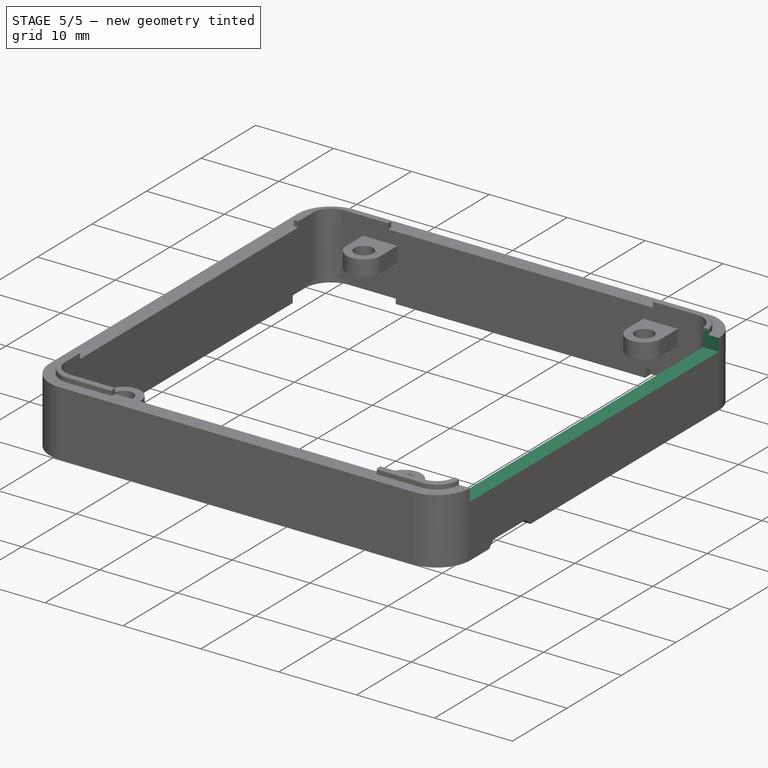
[diagram: stage 5 of 5 — iso view after this stage's code; geometry added in this stage tinted green]
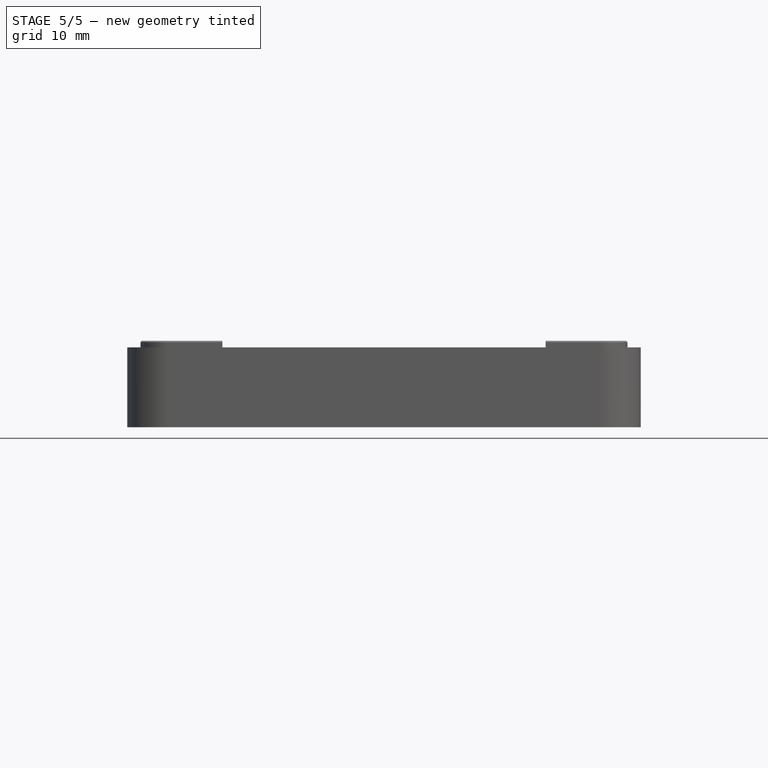
[diagram: stage 5 of 5 — front view after this stage's code; geometry added in this stage tinted green]
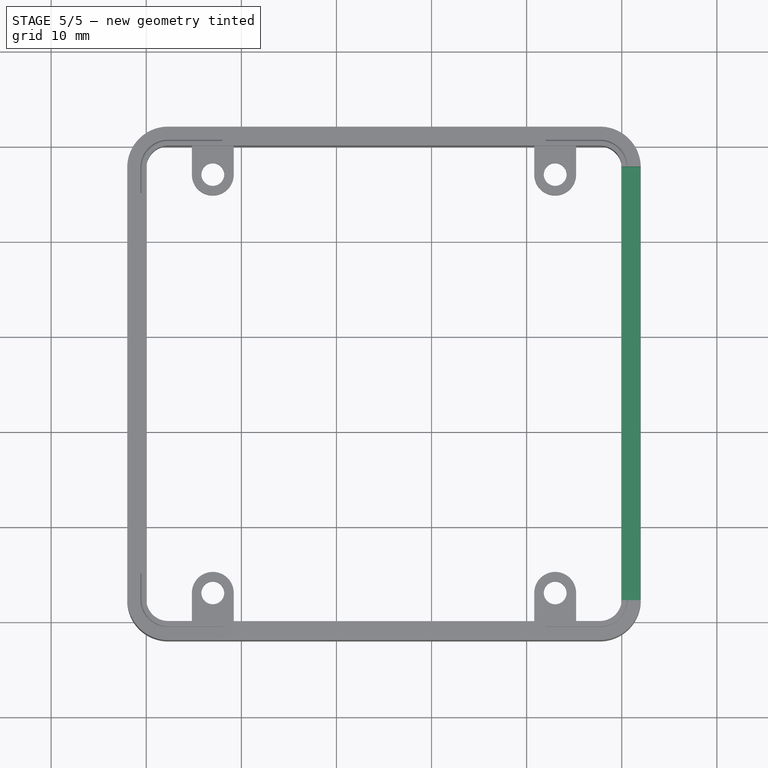
[diagram: stage 5 of 5 — top view after this stage's code; geometry added in this stage tinted green]
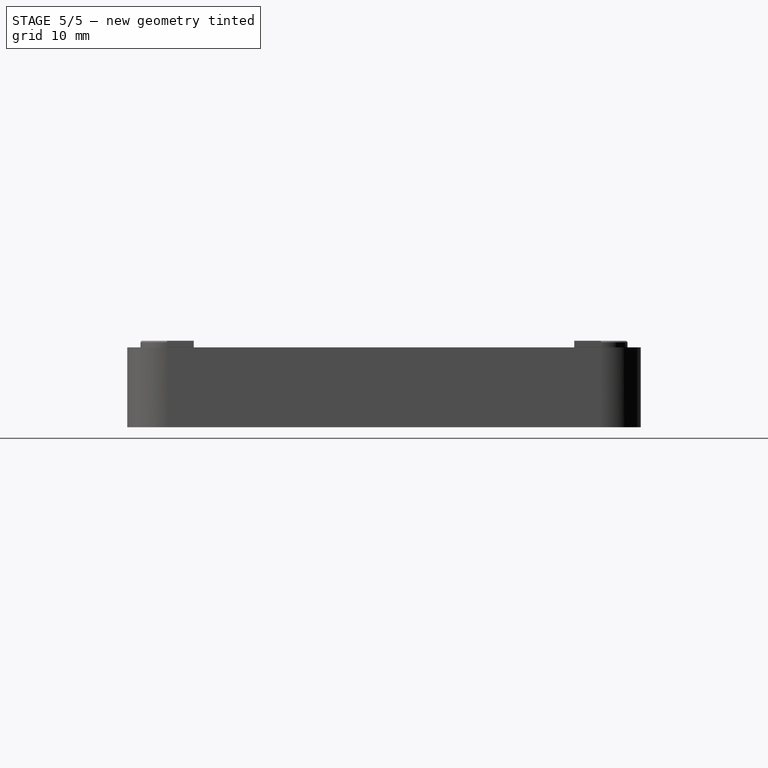
[diagram: stage 5 of 5 — right view after this stage's code; geometry added in this stage tinted green]
FEATURE [Part::Extrusion] Extrude004
  Base = -> Sketch
  Dir = (0,0,1)
  DirMode = 2
  FaceMakerClass = Part::FaceMakerBullseye
  LengthFwd = 10
  LengthRev = 0
  Solid = true
  Symmetric = false
FEATURE [Part::Cut] Cut
  Base = -> Fusion002
  Tool = -> Extrude004
FEATURE [Part::Cut] Cut004
  Base = -> Cut
  Tool = -> Extrude006
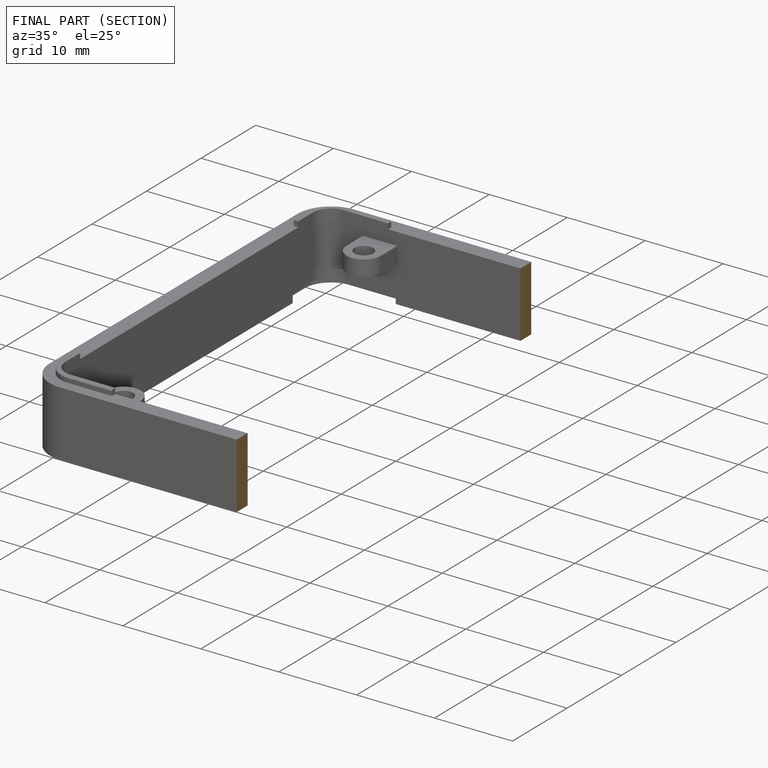
[diagram: finished part — half-section view (interior)]
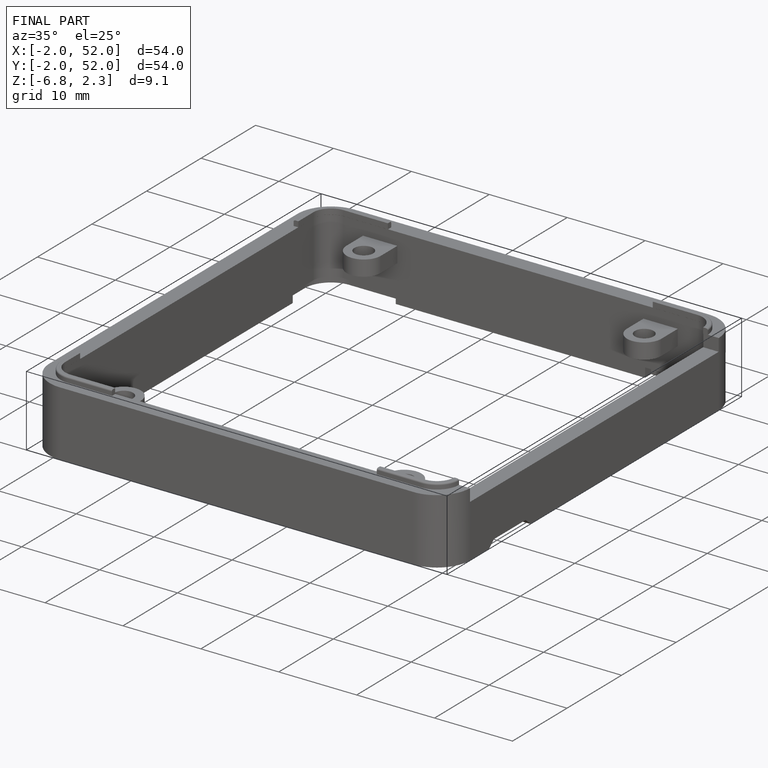
[diagram: finished part — iso view with bounding-box wireframe]
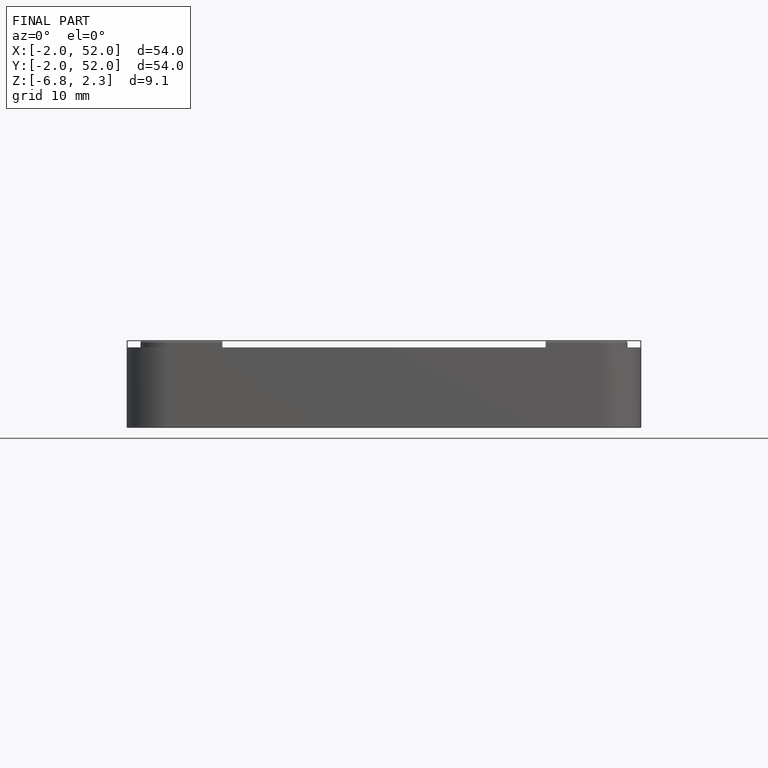
[diagram: finished part — front view with bounding-box wireframe]
